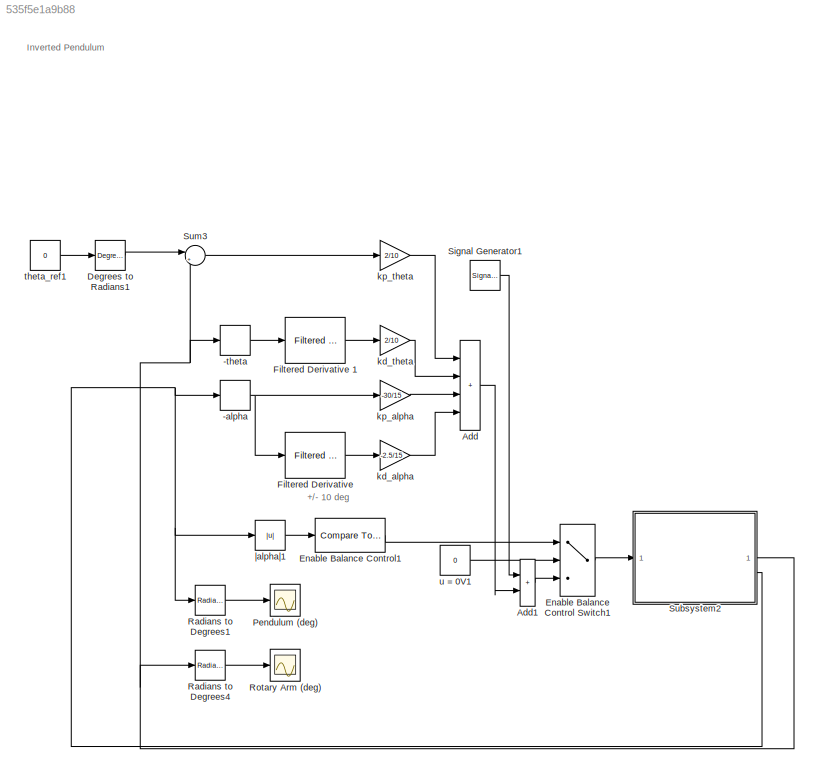
MODEL slx_535f5e1a9b88
KIND model
CONFIG AbsTol = auto
CONFIG EnableMultiTasking = on
CONFIG FixedStep = auto
CONFIG MaxStep = auto
CONFIG MinStep = auto
CONFIG RelTol = 1e-3
CONFIG SampleTimeConstraint = Unconstrained
CONFIG SolverName = FixedStepAuto
CONFIG StartTime = 0.0
CONFIG StopTime = inf
WORKSPACE source: mxarray member
WORKSPACE sampleRate = 0.01
BLOCK [UnaryMinus] -alpha
BLOCK [UnaryMinus] -theta
BLOCK [Sum] Add
  IconShape = rectangular
  Inputs = ++++
BLOCK [Sum] Add1
  IconShape = rectangular
BLOCK [Reference] Degrees to Radians1  REF=simulink_extras/Transformations/Degrees to
Radians
  SourceBlock = simulink_extras/Transformations/Degrees to\nRadians
  SourceType = DegreesToRadians
BLOCK [MultiPortSwitch] Enable Balance Control Switch1
  DataPortOrder = Zero-based contiguous
  InputSameDT = off
  Inputs = 2
  SaturateOnIntegerOverflow = off
  zeroidx = on
BLOCK [Reference] Enable Balance Control1  REF=simulink/Logic and Bit
Operations/Compare
To Constant
  SourceBlock = simulink/Logic and Bit\nOperations/Compare\nTo Constant
  SourceType = Compare To Constant
BLOCK [Reference] Filtered Derivative   REF=eeGeneralControl/Filtered Derivative
(Discrete or Continuous)
  SourceBlock = eeGeneralControl/Filtered Derivative\n(Discrete or Continuous)
  SourceType = Filtered Derivative (Discrete or Continuous)
BLOCK [Reference] Filtered Derivative 1  REF=eeGeneralControl/Filtered Derivative
(Discrete or Continuous)
  SourceBlock = eeGeneralControl/Filtered Derivative\n(Discrete or Continuous)
  SourceType = Filtered Derivative (Discrete or Continuous)
BLOCK [Scope] Pendulum (deg)
  Floating = off
  NumInputPorts = 1
  ScopeSpecificationString = Simulink.scopes.TimeScopeBlockCfg('CurrentConfiguration', extmgr.ConfigurationSet(extmgr.Configuration('Core','General UI',true),extmgr.Configuration('Core','Source UI',true),extmgr.Configuration('Sources','WiredSimulink',true,'DataLoggingSaveFormat','StructureWithTime','DataLoggingLimitDataPoints',true,'DataLoggingDecimation','1','DataLoggingDecimateData',true,'DataLoggingVariableName','ScopeData...<+1837ch>
BLOCK [Reference] Radians to Degrees1  REF=simulink_extras/Transformations/Radians
to Degrees
  SourceBlock = simulink_extras/Transformations/Radians\nto Degrees
  SourceType = RadiansToDegrees
BLOCK [Reference] Radians to Degrees4  REF=simulink_extras/Transformations/Radians
to Degrees
  SourceBlock = simulink_extras/Transformations/Radians\nto Degrees
  SourceType = RadiansToDegrees
BLOCK [Scope] Rotary Arm (deg)
  Floating = off
  NumInputPorts = 1
  ScopeSpecificationString = Simulink.scopes.TimeScopeBlockCfg('CurrentConfiguration', extmgr.ConfigurationSet(extmgr.Configuration('Core','General UI',true),extmgr.Configuration('Core','Source UI',true),extmgr.Configuration('Sources','WiredSimulink',true,'DataLoggingVariableName','ScopeData1','DataLoggingSaveFormat','StructureWithTime','DataLoggingLimitDataPoints',true,'DataLoggingDecimation','1','DataLoggingDecimateData',tr...<+1781ch>
BLOCK [SignalGenerator] Signal Generator1
  Amplitude = 0.15
  Frequency = 15
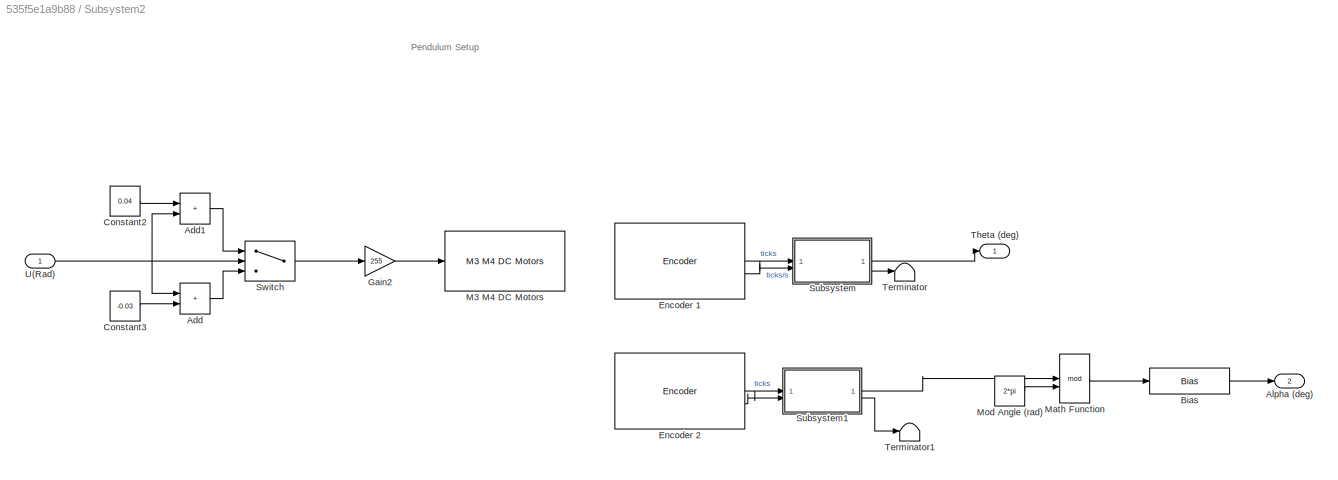
BLOCK [SubSystem] Subsystem2
BLOCK [Sum] Subsystem2/Add
  IconShape = rectangular
BLOCK [Sum] Subsystem2/Add1
  IconShape = rectangular
BLOCK [Outport] Subsystem2/Alpha (deg)
  Port = 2
BLOCK [Bias] Subsystem2/Bias
  Bias = -pi
  SaturateOnIntegerOverflow = off
BLOCK [Constant] Subsystem2/Constant2
  SampleTime = sampleRate
  Value = 0.04
BLOCK [Constant] Subsystem2/Constant3
  SampleTime = sampleRate
  Value = -0.03
BLOCK [Reference] Subsystem2/Encoder 1  REF=arduinomotorcarrierlib/Encoder
  SourceBlock = arduinomotorcarrierlib/Encoder
  SourceType = motorcarrier.blocks.mkrmotorcarrier_Encoder
BLOCK [Reference] Subsystem2/Encoder 2  REF=arduinomotorcarrierlib/Encoder
  SourceBlock = arduinomotorcarrierlib/Encoder
  SourceType = motorcarrier.blocks.mkrmotorcarrier_Encoder
BLOCK [Gain] Subsystem2/Gain2
  Gain = 255
BLOCK [Reference] Subsystem2/M3 M4 DC Motors  REF=arduinomotorcarrierlib/M3 M4 DC Motors
  SourceBlock = arduinomotorcarrierlib/M3 M4 DC Motors
  SourceType = DC Motor
BLOCK [Math] Subsystem2/Math Function
  Operator = mod
  SignedPower = on
BLOCK [Constant] Subsystem2/Mod Angle (rad)
  Value = 2*pi
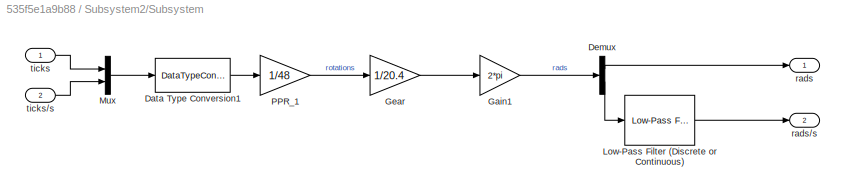
BLOCK [SubSystem] Subsystem2/Subsystem
BLOCK [DataTypeConversion] Subsystem2/Subsystem/Data Type Conversion1
  OutDataTypeStr = double
  RndMeth = Floor
  SaturateOnIntegerOverflow = off
BLOCK [Demux] Subsystem2/Subsystem/Demux
  Outputs = 2
BLOCK [Gain] Subsystem2/Subsystem/Gain1
  Gain = 2*pi
BLOCK [Gain] Subsystem2/Subsystem/Gear
  Gain = 1/20.4
BLOCK [Reference] Subsystem2/Subsystem/Low-Pass Filter (Discrete or Continuous)  REF=eeGeneralControl/Low-Pass Filter
(Discrete or Continuous)
  LibrarySourceBlock = ee_sl_lib/General Control/Low-Pass Filter\n(Discrete or Continuous)
  SourceBlock = eeGeneralControl/Low-Pass Filter\n(Discrete or Continuous)
  SourceType = Low-Pass Filter (Discrete or Continuous)
BLOCK [Mux] Subsystem2/Subsystem/Mux
  DisplayOption = bar
  Inputs = 2
BLOCK [Gain] Subsystem2/Subsystem/PPR_1
  Gain = 1/48
BLOCK [Outport] Subsystem2/Subsystem/rads
BLOCK [Outport] Subsystem2/Subsystem/rads//s
  Port = 2
BLOCK [Inport] Subsystem2/Subsystem/ticks
BLOCK [Inport] Subsystem2/Subsystem/ticks//s
  Port = 2
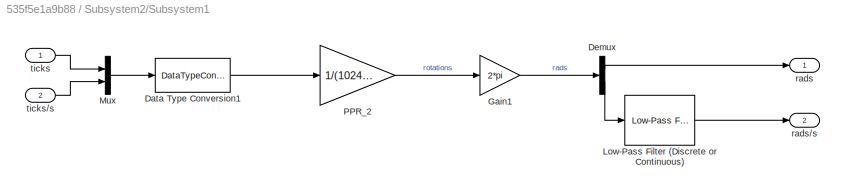
BLOCK [SubSystem] Subsystem2/Subsystem1
BLOCK [DataTypeConversion] Subsystem2/Subsystem1/Data Type Conversion1
  OutDataTypeStr = double
  RndMeth = Floor
  SaturateOnIntegerOverflow = off
BLOCK [Demux] Subsystem2/Subsystem1/Demux
  Outputs = 2
BLOCK [Gain] Subsystem2/Subsystem1/Gain1
  Gain = 2*pi
BLOCK [Reference] Subsystem2/Subsystem1/Low-Pass Filter (Discrete or Continuous)  REF=eeGeneralControl/Low-Pass Filter
(Discrete or Continuous)
  LibrarySourceBlock = ee_sl_lib/General Control/Low-Pass Filter\n(Discrete or Continuous)
  SourceBlock = eeGeneralControl/Low-Pass Filter\n(Discrete or Continuous)
  SourceType = Low-Pass Filter (Discrete or Continuous)
BLOCK [Mux] Subsystem2/Subsystem1/Mux
  DisplayOption = bar
  Inputs = 2
BLOCK [Gain] Subsystem2/Subsystem1/PPR_2
  Gain = 1/(1024*4)
BLOCK [Outport] Subsystem2/Subsystem1/rads
BLOCK [Outport] Subsystem2/Subsystem1/rads//s
  Port = 2
BLOCK [Inport] Subsystem2/Subsystem1/ticks
BLOCK [Inport] Subsystem2/Subsystem1/ticks//s
  Port = 2
BLOCK [Switch] Subsystem2/Switch
  Criteria = u2 > Threshold
  InputSameDT = off
  SaturateOnIntegerOverflow = off
BLOCK [Terminator] Subsystem2/Terminator
BLOCK [Terminator] Subsystem2/Terminator1
BLOCK [Outport] Subsystem2/Theta (deg)
BLOCK [Inport] Subsystem2/U(Rad)
BLOCK [Sum] Sum3
  Inputs = |+-
BLOCK [Gain] kd_alpha
  Gain = -2.5/15
BLOCK [Gain] kd_theta
  Gain = 2/10
BLOCK [Gain] kp_alpha
  Gain = -30/15
BLOCK [Gain] kp_theta
  Gain = 2/10
BLOCK [Constant] theta_ref1
  Value = 0
BLOCK [Constant] u = 0V1
  Value = 0
BLOCK [Abs] |alpha|1
  SaturateOnIntegerOverflow = off
ANNOTATION (root): +/- 10 deg
ANNOTATION (root): Inverted Pendulum
ANNOTATION Subsystem2: Pendulum Setup
NET -alpha:1 -> Filtered Derivative :1, kp_alpha:1
LINE -theta:1 -> Filtered Derivative 1:1
LINE Add1:1 -> Enable Balance Control Switch1:3
LINE Add:1 -> Add1:2
LINE Degrees to Radians1:1 -> Sum3:1
LINE Enable Balance Control Switch1:1 -> Subsystem2:1
LINE Enable Balance Control1:1 -> Enable Balance Control Switch1:1
LINE Filtered Derivative 1:1 -> kd_theta:1
LINE Filtered Derivative :1 -> kd_alpha:1
LINE Radians to Degrees1:1 -> Pendulum (deg):1
LINE Radians to Degrees4:1 -> Rotary Arm (deg):1
LINE Signal Generator1:1 -> Add1:1
LINE Subsystem2/Add1:1 -> Subsystem2/Switch:1
LINE Subsystem2/Add:1 -> Subsystem2/Switch:3
LINE Subsystem2/Bias:1 -> Subsystem2/Alpha (deg):1
LINE Subsystem2/Constant2:1 -> Subsystem2/Add1:1
LINE Subsystem2/Constant3:1 -> Subsystem2/Add:2
LINE Subsystem2/Encoder 1:1 -> Subsystem2/Subsystem:1
LINE Subsystem2/Encoder 1:2 -> Subsystem2/Subsystem:2
LINE Subsystem2/Encoder 2:1 -> Subsystem2/Subsystem1:1
LINE Subsystem2/Encoder 2:2 -> Subsystem2/Subsystem1:2
LINE Subsystem2/Gain2:1 -> Subsystem2/M3 M4 DC Motors:1
LINE Subsystem2/Math Function:1 -> Subsystem2/Bias:1
LINE Subsystem2/Mod Angle (rad):1 -> Subsystem2/Math Function:2
LINE Subsystem2/Subsystem/Data Type Conversion1:1 -> Subsystem2/Subsystem/PPR_1:1
LINE Subsystem2/Subsystem/Demux:1 -> Subsystem2/Subsystem/rads:1
LINE Subsystem2/Subsystem/Demux:2 -> Subsystem2/Subsystem/Low-Pass Filter (Discrete or Continuous):1
LINE Subsystem2/Subsystem/Gain1:1 -> Subsystem2/Subsystem/Demux:1
LINE Subsystem2/Subsystem/Gear:1 -> Subsystem2/Subsystem/Gain1:1
LINE Subsystem2/Subsystem/Low-Pass Filter (Discrete or Continuous):1 -> Subsystem2/Subsystem/rads//s:1
LINE Subsystem2/Subsystem/Mux:1 -> Subsystem2/Subsystem/Data Type Conversion1:1
LINE Subsystem2/Subsystem/PPR_1:1 -> Subsystem2/Subsystem/Gear:1
LINE Subsystem2/Subsystem/ticks//s:1 -> Subsystem2/Subsystem/Mux:2
LINE Subsystem2/Subsystem/ticks:1 -> Subsystem2/Subsystem/Mux:1
LINE Subsystem2/Subsystem1/Data Type Conversion1:1 -> Subsystem2/Subsystem1/PPR_2:1
LINE Subsystem2/Subsystem1/Demux:1 -> Subsystem2/Subsystem1/rads:1
LINE Subsystem2/Subsystem1/Demux:2 -> Subsystem2/Subsystem1/Low-Pass Filter (Discrete or Continuous):1
LINE Subsystem2/Subsystem1/Gain1:1 -> Subsystem2/Subsystem1/Demux:1
LINE Subsystem2/Subsystem1/Low-Pass Filter (Discrete or Continuous):1 -> Subsystem2/Subsystem1/rads//s:1
LINE Subsystem2/Subsystem1/Mux:1 -> Subsystem2/Subsystem1/Data Type Conversion1:1
LINE Subsystem2/Subsystem1/PPR_2:1 -> Subsystem2/Subsystem1/Gain1:1
LINE Subsystem2/Subsystem1/ticks//s:1 -> Subsystem2/Subsystem1/Mux:2
LINE Subsystem2/Subsystem1/ticks:1 -> Subsystem2/Subsystem1/Mux:1
LINE Subsystem2/Subsystem1:1 -> Subsystem2/Math Function:1
LINE Subsystem2/Subsystem1:2 -> Subsystem2/Terminator1:1
LINE Subsystem2/Subsystem:1 -> Subsystem2/Theta (deg):1
LINE Subsystem2/Subsystem:2 -> Subsystem2/Terminator:1
LINE Subsystem2/Switch:1 -> Subsystem2/Gain2:1
NET Subsystem2/U(Rad):1 -> Subsystem2/Add1:2, Subsystem2/Add:1, Subsystem2/Switch:2
NET Subsystem2:1 -> -theta:1, Radians to Degrees4:1, Sum3:2
NET Subsystem2:2 -> -alpha:1, Radians to Degrees1:1, |alpha|1:1
LINE Sum3:1 -> kp_theta:1
LINE kd_alpha:1 -> Add:4
LINE kd_theta:1 -> Add:2
LINE kp_alpha:1 -> Add:3
LINE kp_theta:1 -> Add:1
LINE theta_ref1:1 -> Degrees to Radians1:1
LINE u = 0V1:1 -> Enable Balance Control Switch1:2
LINE |alpha|1:1 -> Enable Balance Control1:1
note: NET lines group one-source signal fan-out (src -> all destinations, sorted); 1:1 wires keep LINE
